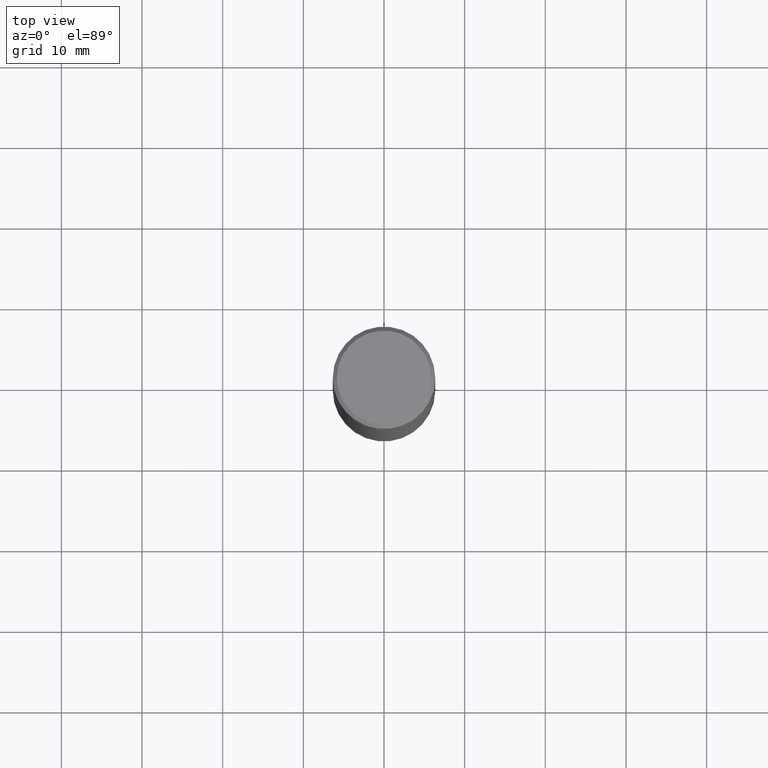
[diagram: clean part render]
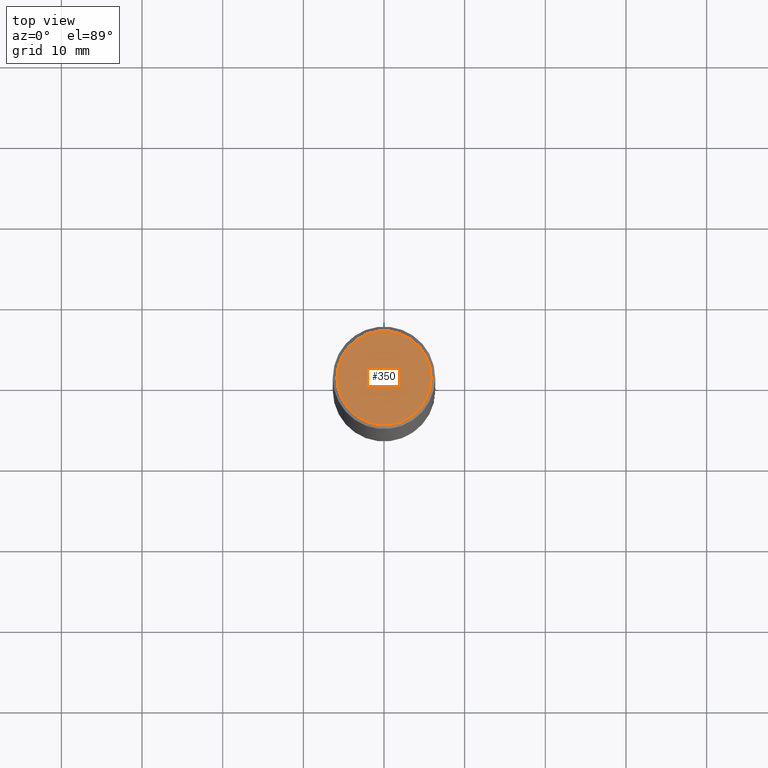
[diagram: same view with one face highlighted and labeled with its STEP entity id]
A machine part, top view. The second image highlights one B-rep face of the part: STEP entity #350.
In plain terms, the highlighted planar face has unit normal (0, -0, -1).
Its self-contained STEP definition (entity closure, byte-faithful):
#4 = CARTESIAN_POINT ( 'NONE',  ( -0.2299999999999997602, 1.640996229256270941E-15, 4.268512490089056766E-18 ) ) ;
#19 = CARTESIAN_POINT ( 'NONE',  ( 0.2299999999999997602, -1.681434332853597631E-15, 4.268512490111905999E-18 ) ) ;
#37 = EDGE_CURVE ( 'NONE', #248, #109, #139, .T. ) ;
#48 = ORIENTED_EDGE ( 'NONE', *, *, #286, .T. ) ;
#79 = DIRECTION ( 'NONE',  ( -2.445468806185136597E-29, 3.491481338843145583E-15, 1.000000000000000000 ) ) ;
#95 = DIRECTION ( 'NONE',  ( 2.438088387897960049E-29, -3.491481338843145188E-15, -1.000000000000000000 ) ) ;
#109 = VERTEX_POINT ( 'NONE', #4 ) ;
#117 = CARTESIAN_POINT ( 'NONE',  ( -1.043851414335219820E-46, 1.490343170380447200E-32, 4.268512490100411279E-18 ) ) ;
#139 = CIRCLE ( 'NONE', #212, 0.2299999999999997602 ) ;
#140 = DIRECTION ( 'NONE',  ( 1.000000000000000000, -6.982962677686267499E-15, 4.876225828469313926E-29 ) ) ;
#150 = FACE_OUTER_BOUND ( 'NONE', #246, .T. ) ;
#152 = DIRECTION ( 'NONE',  ( -1.000000000000000000, 6.982962677686265922E-15, -4.876176775795935793E-29 ) ) ;
#172 = CARTESIAN_POINT ( 'NONE',  ( -1.043851414335219820E-46, 1.490343170380447200E-32, 4.268512490100411279E-18 ) ) ;
#212 = AXIS2_PLACEMENT_3D ( 'NONE', #117, #283, #140 ) ;
#213 = CIRCLE ( 'NONE', #357, 0.2299999999999997602 ) ;
#222 = ORIENTED_EDGE ( 'NONE', *, *, #37, .T. ) ;
#242 = DIRECTION ( 'NONE',  ( 1.000000000000000000, -6.982962677686267499E-15, 4.876225828469313926E-29 ) ) ;
#246 = EDGE_LOOP ( 'NONE', ( #48, #222 ) ) ;
#248 = VERTEX_POINT ( 'NONE', #19 ) ;
#283 = DIRECTION ( 'NONE',  ( -2.445468806185136597E-29, 3.491481338843145583E-15, 1.000000000000000000 ) ) ;
#286 = EDGE_CURVE ( 'NONE', #109, #248, #213, .T. ) ;
#288 = CARTESIAN_POINT ( 'NONE',  ( 1.606081415867839490E-15, 0.2299999999999997602, -8.009064516888724897E-16 ) ) ;
#302 = AXIS2_PLACEMENT_3D ( 'NONE', #288, #95, #152 ) ;
#347 = PLANE ( 'NONE',  #302 ) ;
#350 = ADVANCED_FACE ( 'NONE', ( #150 ), #347, .F. ) ;
#357 = AXIS2_PLACEMENT_3D ( 'NONE', #172, #79, #242 ) ;